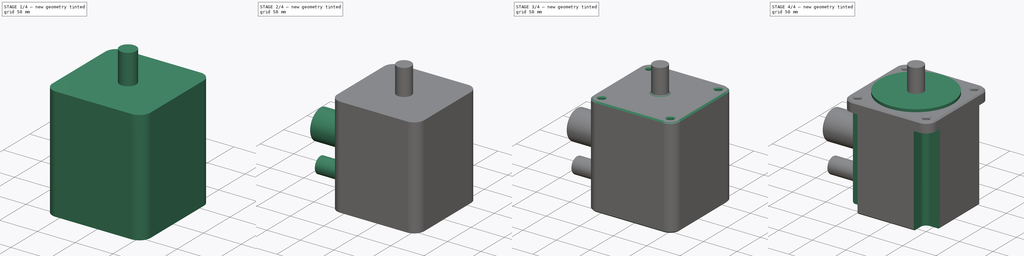
[diagram: build sequence overview — one tinted view per stage of 4, left to right]
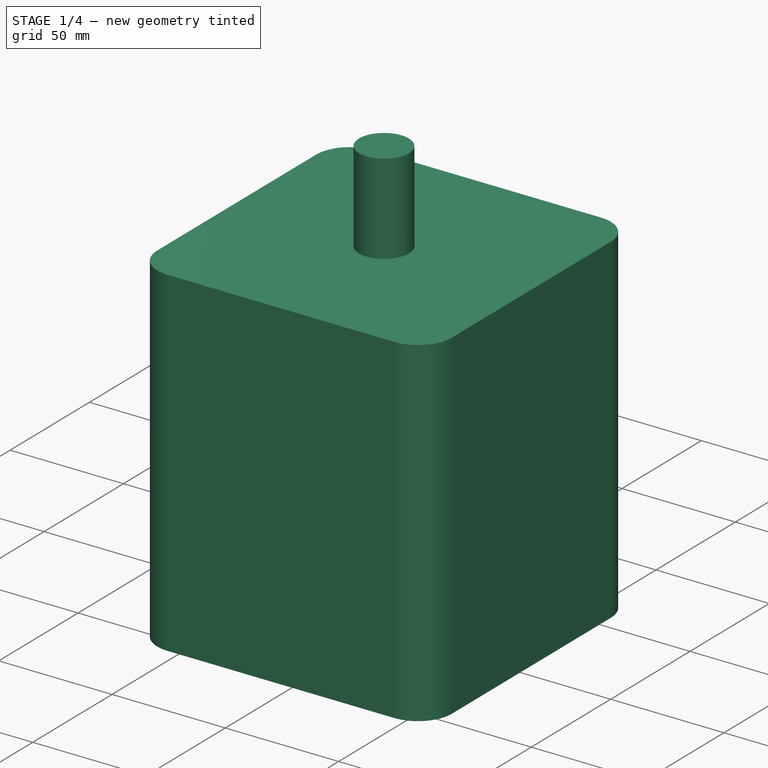
[diagram: stage 1 of 4 — iso view after this stage's code; geometry added in this stage tinted green]
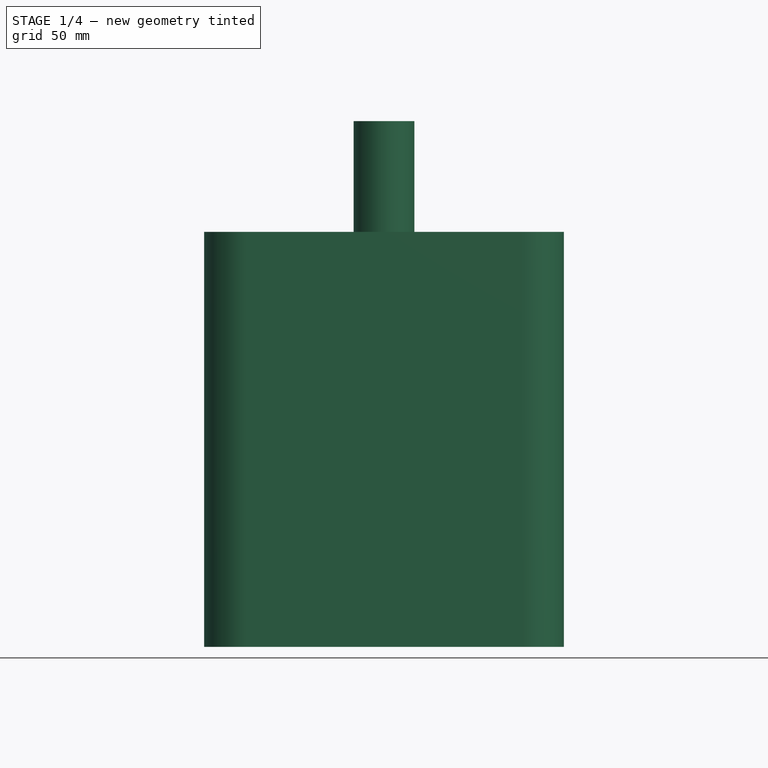
[diagram: stage 1 of 4 — front view after this stage's code; geometry added in this stage tinted green]
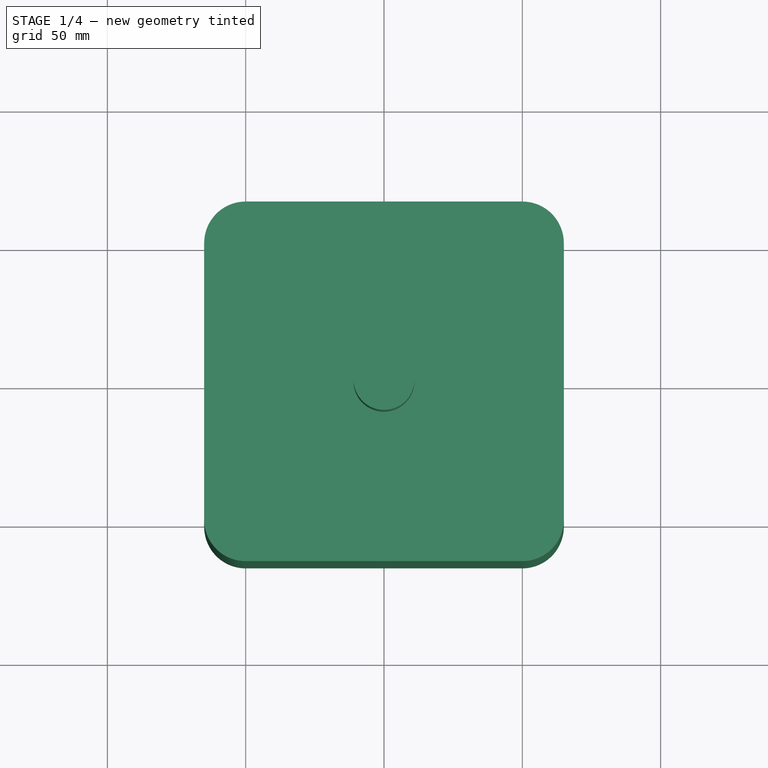
[diagram: stage 1 of 4 — top view after this stage's code; geometry added in this stage tinted green]
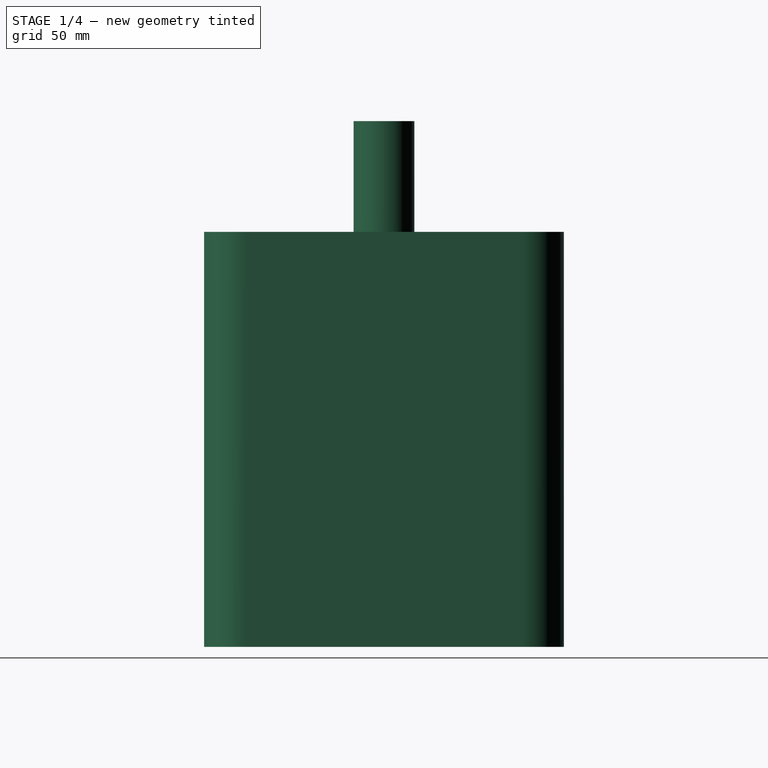
[diagram: stage 1 of 4 — right view after this stage's code; geometry added in this stage tinted green]
FCSTD DOCUMENT  (FreeCAD 0.21R33771 (Git))
Label: Motore-P60B13150HXS00M- SANYO
License: All rights reserved
LicenseURL: http://en.wikipedia.org/wiki/All_rights_reserved
objects: Sketcher::SketchObject×6, PartDesign::Pad×4, PartDesign::Fillet×2, PartDesign::Pocket×2, PartDesign::CoordinateSystem×1, PartDesign::Chamfer×1, PartDesign::Body×1, App::MeasureDistance×1
note: 26 computed .brp shape members not serialized (recipe doc carries the construction recipe); baked Part::Feature solids carry a one-line shape summary decoded from their .brp

FEATURE [Sketcher::SketchObject] Sketch
  FullyConstrained = true
  MapMode = 5
  Support = -> [XY_Plane]
  sketch-geometry (8):
    g0: LineSegment StartX=-50 StartY=65 StartZ=0 EndX=50 EndY=65 EndZ=0
    g1: LineSegment StartX=65 StartY=50 StartZ=0 EndX=65 EndY=-50 EndZ=0
    g2: LineSegment StartX=50 StartY=-65 StartZ=0 EndX=-50 EndY=-65 EndZ=0
    g3: LineSegment StartX=-65 StartY=-50 StartZ=0 EndX=-65 EndY=50 EndZ=0
    g4: ArcOfCircle CenterX=50 CenterY=50 CenterZ=0 NormalX=0 NormalY=0 NormalZ=1 AngleXU=0 Radius=15 StartAngle=0 EndAngle=1.5708
    g5: ArcOfCircle CenterX=-50 CenterY=50 CenterZ=0 NormalX=0 NormalY=0 NormalZ=1 AngleXU=0 Radius=15 StartAngle=1.5708 EndAngle=3.14159
    g6: ArcOfCircle CenterX=-50 CenterY=-50 CenterZ=0 NormalX=0 NormalY=0 NormalZ=1 AngleXU=0 Radius=15 StartAngle=3.14159 EndAngle=4.71239
    g7: ArcOfCircle CenterX=50 CenterY=-50 CenterZ=0 NormalX=0 NormalY=0 NormalZ=1 AngleXU=0 Radius=15 StartAngle=4.71239 EndAngle=6.28319
  constraints (19):
    c: Horizontal(g0)
    c: Vertical(g1)
    c: Tangent(g1,g4) = 1.5708
    c: Tangent(g0,g4) = 1.5708
    c: Tangent(g0,g5) = 1.5708
    c: Tangent(g3,g5) = 1.5708
    c: Tangent(g3,g6) = 1.5708
    c: Tangent(g2,g6) = 1.5708
    c: Tangent(g2,g7) = 1.5708
    c: Tangent(g1,g7) = 1.5708
    c: Equal(g5,g6)
    c: Equal(g6,g7)
    c: Equal(g7,g4)
    c: Equal(g0,g2)
    c: Radius(g4) = 15
    c: DistanceX(g2,g2) = 100
    c: DistanceY(g3,g3) = 100
    c: Symmetric(g6,g7,g-2)
    c: DistanceY(g7,g-1) = 50
FEATURE [PartDesign::Pad] Pad
  Direction = (0,0,1)
  Length = 150
  Length2 = 10
  Profile = -> Sketch
  ReferenceAxis = -> Sketch [N_Axis]
  Type = 0
FEATURE [Sketcher::SketchObject] Sketch001
  FullyConstrained = true
  MapMode = 5
  Placement = pos=(0,0,150) rot=(0,0,1;0rad)
  Support = -> [Pad]
  sketch-geometry (1):
    g0: Circle CenterX=0 CenterY=0 CenterZ=0 NormalX=0 NormalY=0 NormalZ=1 AngleXU=0 Radius=11
  constraints (2):
    c: Coincident(g0,g-1)
    c: Radius(g0) = 11
FEATURE [PartDesign::Pad] Pad001
  BaseFeature = -> Pad
  Direction = (0,0,1)
  Length = 40
  Length2 = 10
  Profile = -> Sketch001
  ReferenceAxis = -> Sketch001 [N_Axis]
  Type = 0
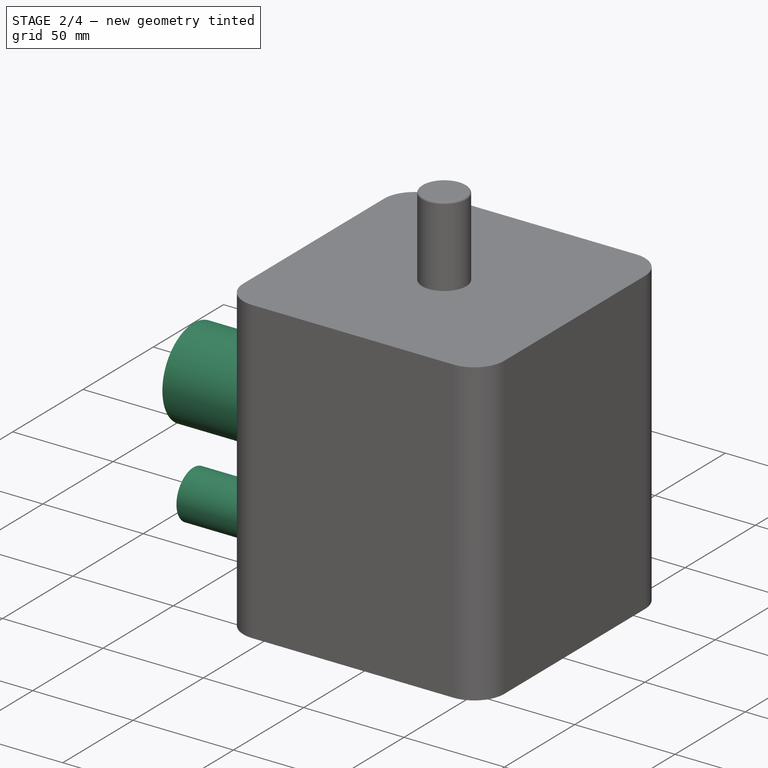
[diagram: stage 2 of 4 — iso view after this stage's code; geometry added in this stage tinted green]
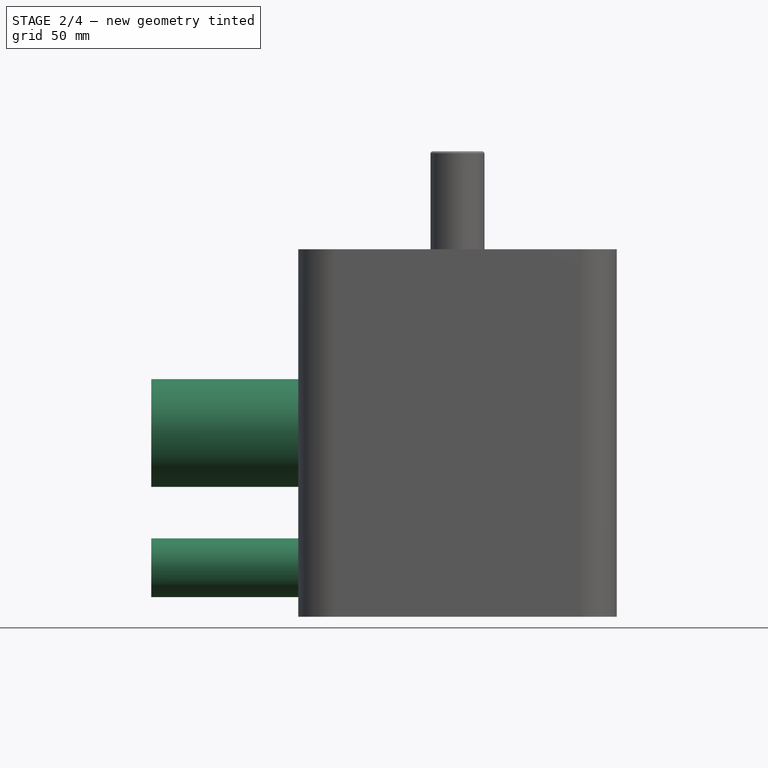
[diagram: stage 2 of 4 — front view after this stage's code; geometry added in this stage tinted green]
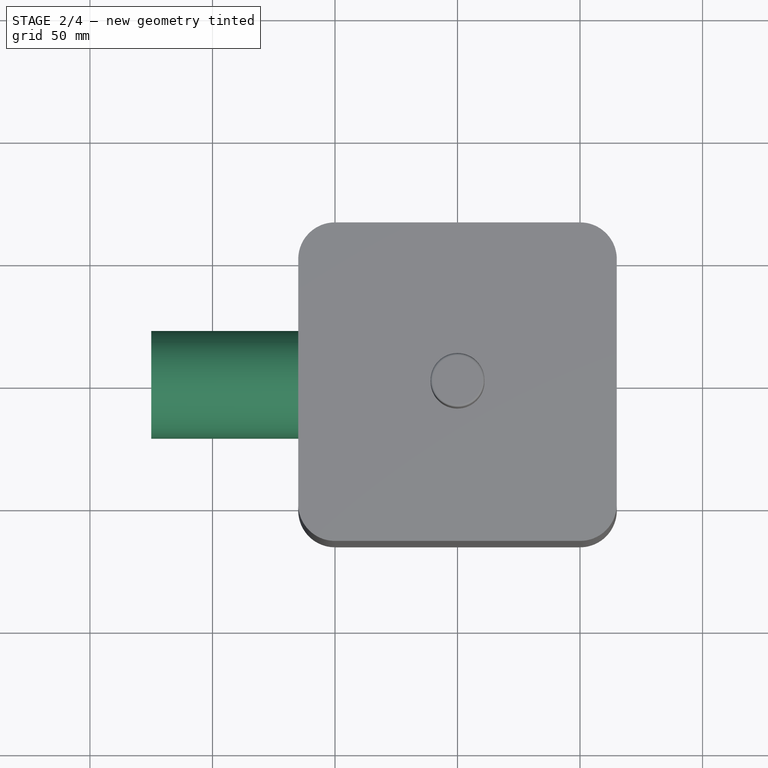
[diagram: stage 2 of 4 — top view after this stage's code; geometry added in this stage tinted green]
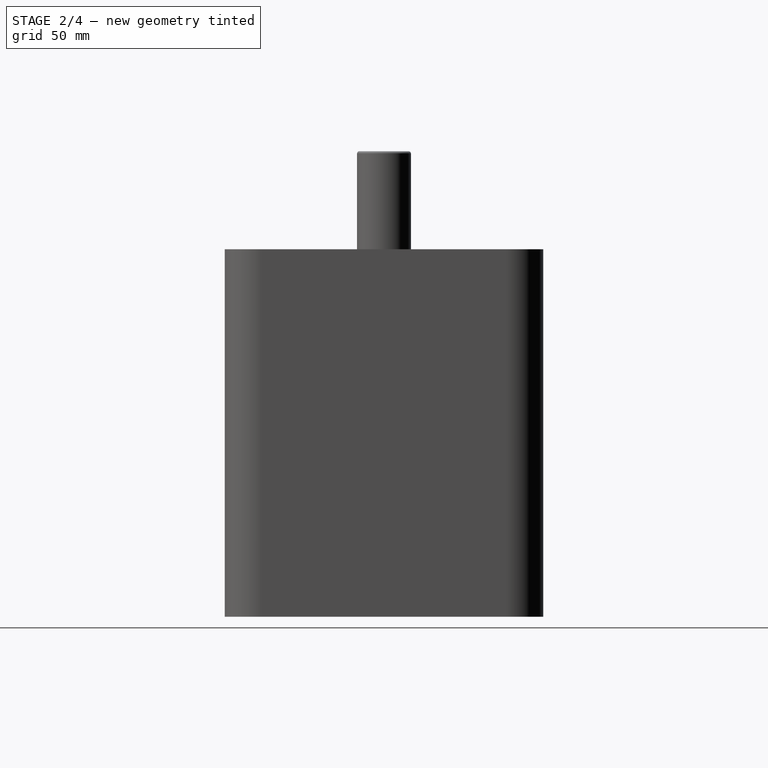
[diagram: stage 2 of 4 — right view after this stage's code; geometry added in this stage tinted green]
FEATURE [PartDesign::Fillet] Fillet
  Base = -> Pad001 [Edge27]
  BaseFeature = -> Pad001
  Radius = 1
  SupportTransform = false
  UseAllEdges = false
FEATURE [Sketcher::SketchObject] Sketch002
  FullyConstrained = true
  MapMode = 5
  Placement = pos=(-65,0,0) rot=(0.57735,-0.57735,-0.57735;2.0944rad)
  Support = -> [Fillet]
  sketch-geometry (2):
    g0: Circle CenterX=0 CenterY=75 CenterZ=0 NormalX=0 NormalY=0 NormalZ=1 AngleXU=0 Radius=22
    g1: Circle CenterX=0 CenterY=20 CenterZ=0 NormalX=0 NormalY=0 NormalZ=1 AngleXU=0 Radius=12
  constraints (6):
    c: PointOnObject(g0,g-2)
    c: Radius(g0) = 22
    c: DistanceY(g-1,g0) = 75
    c: PointOnObject(g1,g-2)
    c: Radius(g1) = 12
    c: DistanceY(g-1,g1) = 20
FEATURE [PartDesign::Pad] Pad002
  BaseFeature = -> Fillet
  Direction = (-1,0,0)
  Length = 60
  Length2 = 10
  Profile = -> Sketch002
  ReferenceAxis = -> Sketch002 [N_Axis]
  Type = 0
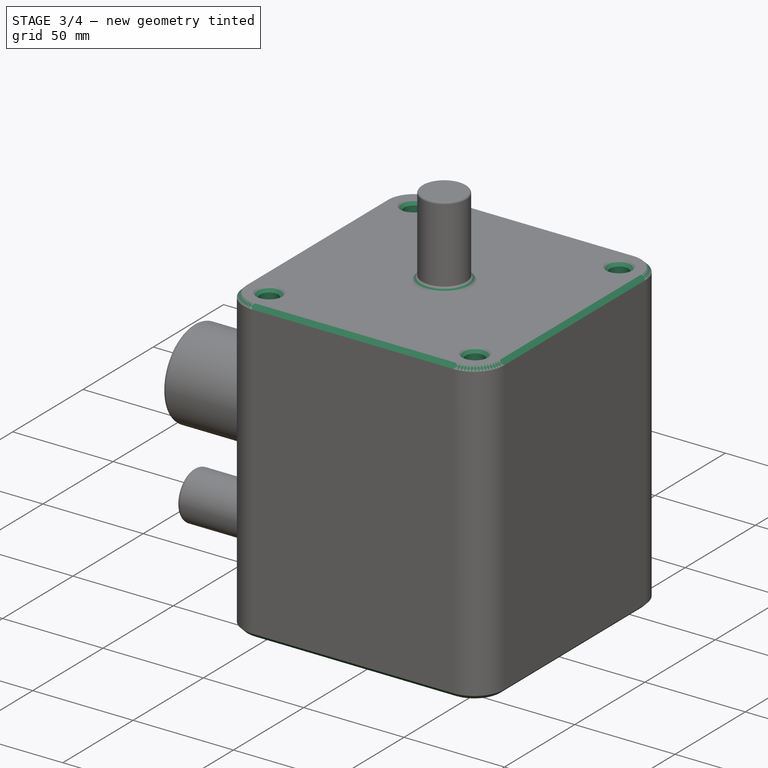
[diagram: stage 3 of 4 — iso view after this stage's code; geometry added in this stage tinted green]
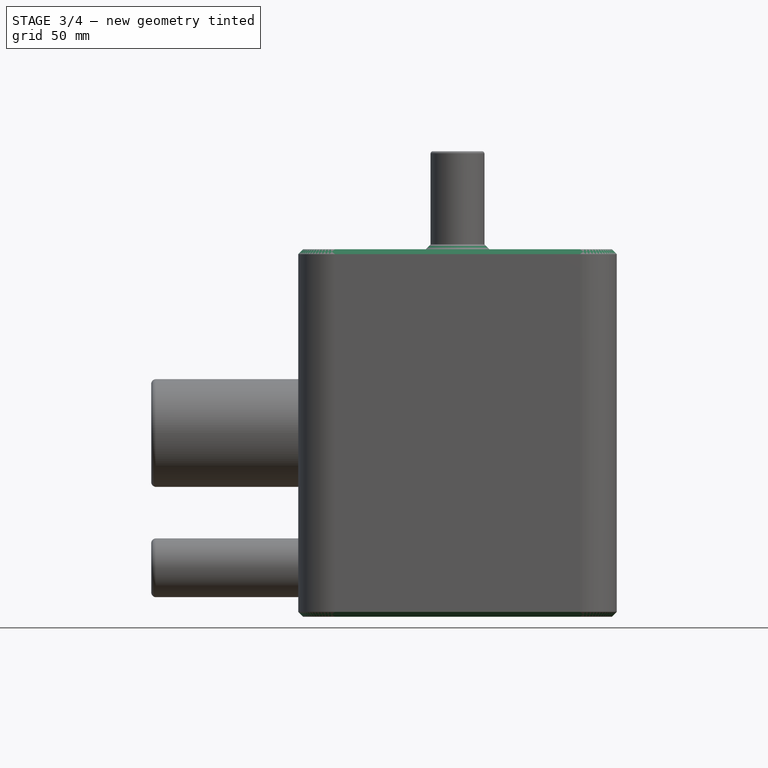
[diagram: stage 3 of 4 — front view after this stage's code; geometry added in this stage tinted green]
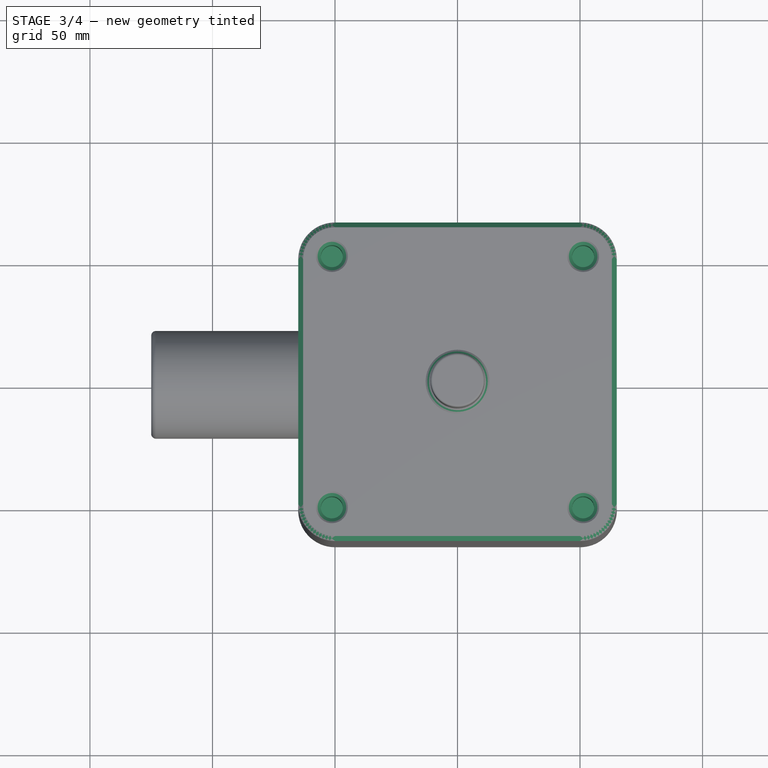
[diagram: stage 3 of 4 — top view after this stage's code; geometry added in this stage tinted green]
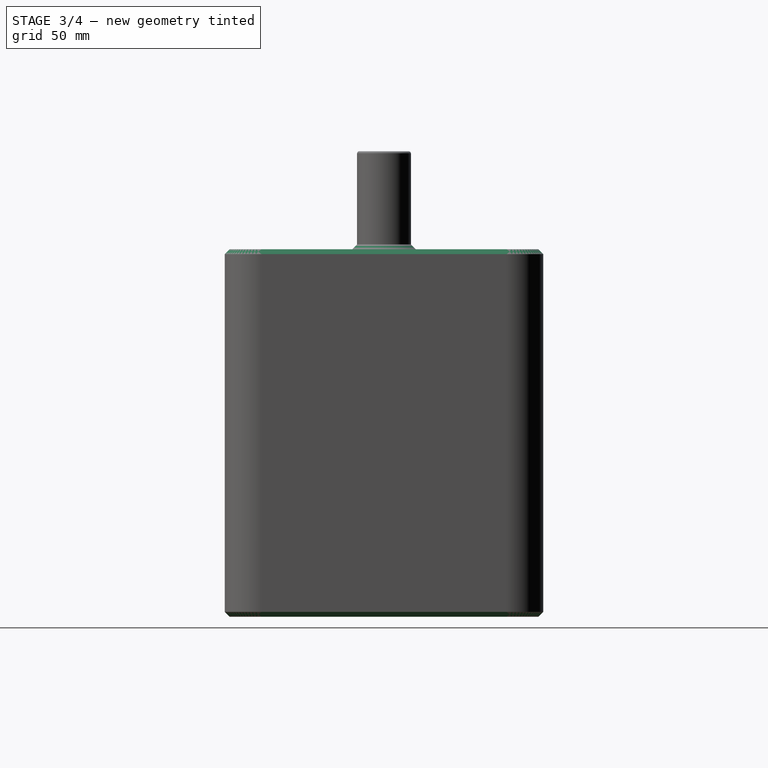
[diagram: stage 3 of 4 — right view after this stage's code; geometry added in this stage tinted green]
FEATURE [PartDesign::CoordinateSystem] LCS_Motore_sanyoP60  label="LCS_Motore sanyoP60"
  AttacherType = Attacher::AttachEngine3D
  Placement = pos=(0,0,0) rot=(1,0,0;1.5708rad)
FEATURE [Sketcher::SketchObject] Sketch003
  FullyConstrained = false
  MapMode = 5
  Placement = pos=(0,0,150) rot=(0,0,1;0rad)
  Support = -> [Pad002]
  sketch-geometry (9):
    g0: Circle CenterX=-51.2652 CenterY=51.2652 CenterZ=0 NormalX=0 NormalY=0 NormalZ=1 AngleXU=0 Radius=4.5
    g1: Circle CenterX=51.2652 CenterY=51.2652 CenterZ=0 NormalX=0 NormalY=0 NormalZ=1 AngleXU=0 Radius=4.5
    g2: Circle CenterX=51.2652 CenterY=-51.2652 CenterZ=0 NormalX=0 NormalY=0 NormalZ=1 AngleXU=0 Radius=4.5
    g3: Circle CenterX=-51.2652 CenterY=-51.2652 CenterZ=0 NormalX=0 NormalY=0 NormalZ=1 AngleXU=0 Radius=4.5
    g4: Circle CenterX=0 CenterY=0 CenterZ=0 NormalX=0 NormalY=0 NormalZ=1 AngleXU=0 Radius=72.5
    g5: LineSegment StartX=0 StartY=0 StartZ=0 EndX=83.64 EndY=83.64 EndZ=0
    g6: LineSegment StartX=0 StartY=0 StartZ=0 EndX=-77.2502 EndY=77.2502 EndZ=0
    g7: LineSegment StartX=0 StartY=0 StartZ=0 EndX=-76.8185 EndY=-76.8185 EndZ=0
    g8: LineSegment StartX=0 StartY=0 StartZ=0 EndX=82.668 EndY=-82.668 EndZ=0
  constraints (22):
    c: Radius(g0) = 4.5
    c: Equal(g0,g1)
    c: Equal(g1,g3)
    c: Equal(g3,g2)
    c: Coincident(g4,g-1)
    c: Radius(g4) = 72.5
    c: PointOnObject(g1,g4)
    c: PointOnObject(g0,g4)
    c: PointOnObject(g3,g4)
    c: PointOnObject(g2,g4)
    c: Coincident(g5,g4)
    c: Coincident(g6,g4)
    c: Coincident(g7,g4)
    c: Coincident(g8,g4)
    c: Angle(g-1,g5) = 0.785398
    c: Angle(g5,g6) = 1.5708
    c: Angle(g6,g7) = 1.5708
    c: Angle(g7,g8) = 1.5708
    c: PointOnObject(g1,g5)
    c: PointOnObject(g0,g6)
    c: PointOnObject(g3,g7)
    c: PointOnObject(g2,g8)
FEATURE [PartDesign::Pocket] Pocket
  BaseFeature = -> Pad002
  Direction = (0,0,-1)
  Length = 25
  Length2 = 5
  Profile = -> Sketch003
  ReferenceAxis = -> Sketch003 [N_Axis]
  Type = 0
FEATURE [PartDesign::Fillet] Fillet001
  Base = -> Pocket [Edge47,Edge45]
  BaseFeature = -> Pocket
  Radius = 2
  SupportTransform = false
  UseAllEdges = false
FEATURE [PartDesign::Chamfer] Chamfer
  Angle = 45
  Base = -> Fillet001 [Edge8,Edge20,Edge23,Edge25,Edge24,Edge13,Face7,Edge21,Edge22,Edge7,Edge19,Edge12,Edge14,Edge15,Edge16,Edge17,Edge18]
  BaseFeature = -> Fillet001
  ChamferType = 0
  FlipDirection = false
  Size = 2
  Size2 = 1
  SupportTransform = false
  UseAllEdges = false
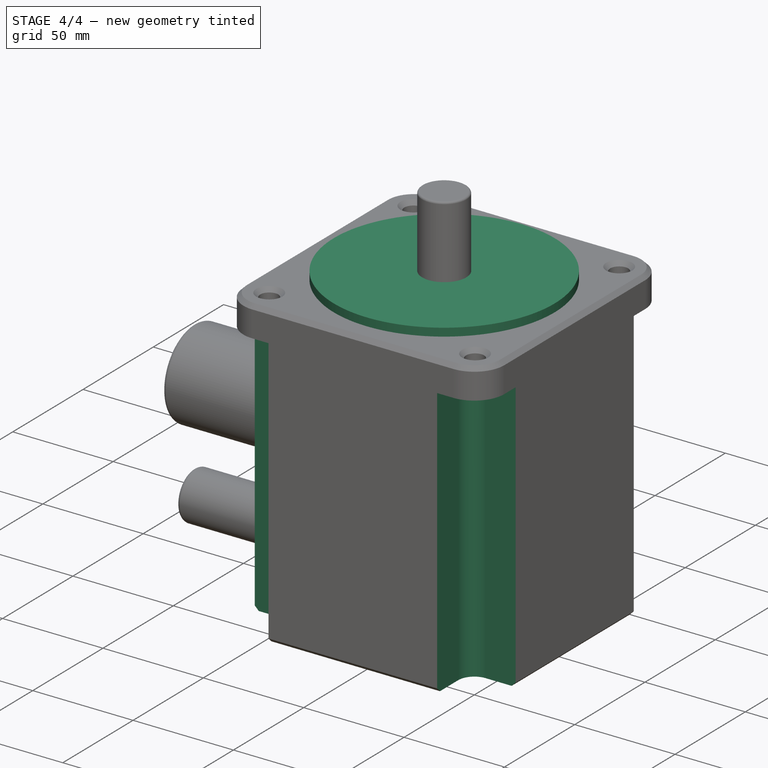
[diagram: stage 4 of 4 — iso view after this stage's code; geometry added in this stage tinted green]
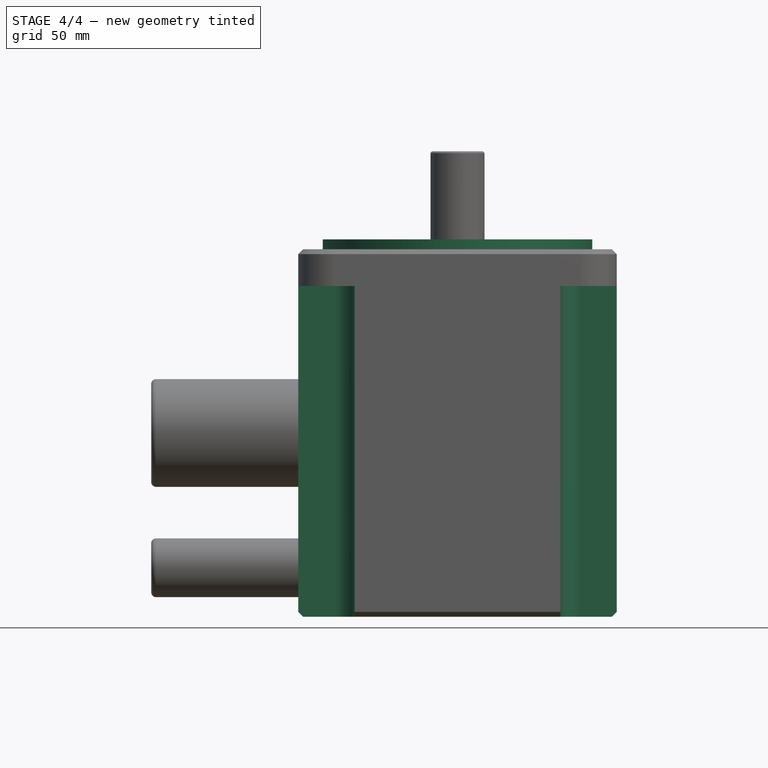
[diagram: stage 4 of 4 — front view after this stage's code; geometry added in this stage tinted green]
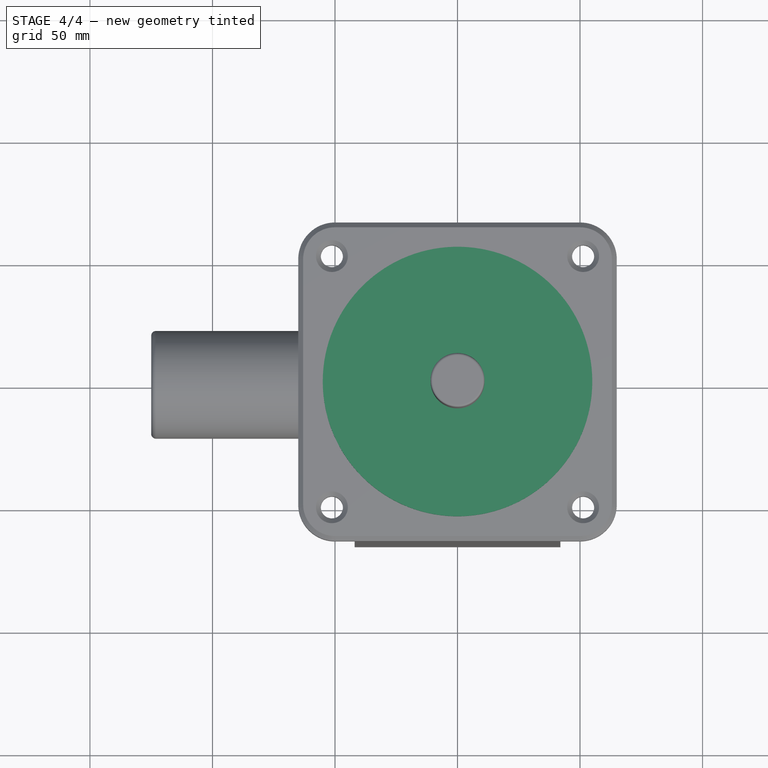
[diagram: stage 4 of 4 — top view after this stage's code; geometry added in this stage tinted green]
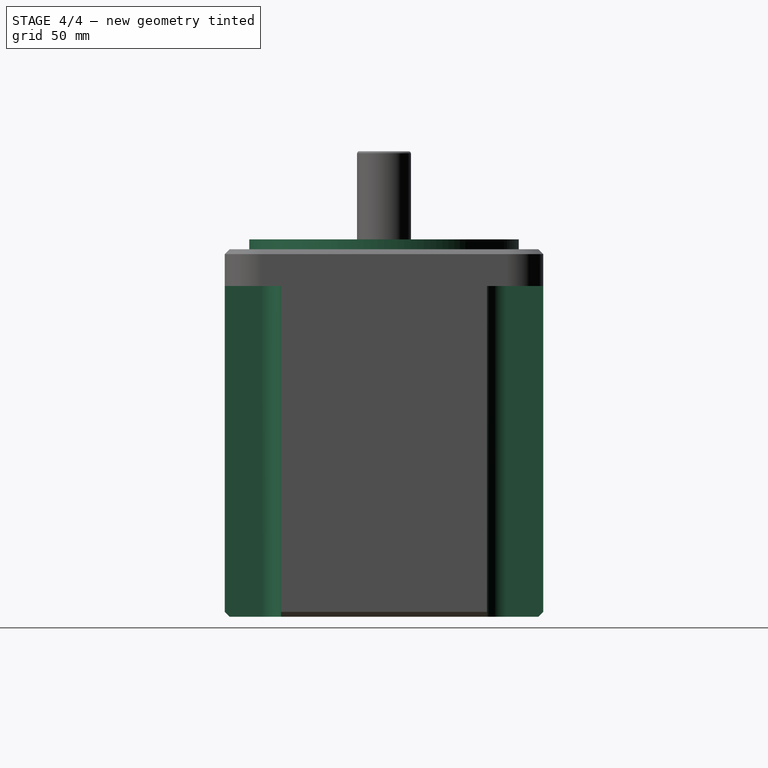
[diagram: stage 4 of 4 — right view after this stage's code; geometry added in this stage tinted green]
FEATURE [Sketcher::SketchObject] Sketch004
  FullyConstrained = true
  MapMode = 5
  Placement = pos=(0,0,150) rot=(0,0,1;0rad)
  Support = -> [Chamfer]
  sketch-geometry (1):
    g0: Circle CenterX=0 CenterY=0 CenterZ=0 NormalX=0 NormalY=0 NormalZ=1 AngleXU=0 Radius=55
  constraints (2):
    c: Coincident(g0,g-1)
    c: Radius(g0) = 55
FEATURE [PartDesign::Pad] Pad003
  BaseFeature = -> Chamfer
  Direction = (0,0,1)
  Length = 4
  Length2 = 10
  Profile = -> Sketch004
  ReferenceAxis = -> Sketch004 [N_Axis]
  Type = 0
FEATURE [Sketcher::SketchObject] Sketch005
  ExternalGeometry = -> [Pad003]
  FullyConstrained = false
  MapMode = 5
  Placement = pos=(0,0,0) rot=(1,0,0;3.14159rad)
  Support = -> [Pad003]
  sketch-geometry (24):
    g0: ArcOfCircle CenterX=-50 CenterY=-50 CenterZ=0 NormalX=0 NormalY=0 NormalZ=1 AngleXU=0 Radius=8 StartAngle=3e-16 EndAngle=1.5708
    g1: LineSegment StartX=-50 StartY=-42 StartZ=0 EndX=-65 EndY=-42 EndZ=0
    g2: LineSegment StartX=-42 StartY=-50 StartZ=0 EndX=-42 EndY=-65 EndZ=0
    g3: LineSegment StartX=-65 StartY=-50 StartZ=0 EndX=-65 EndY=-42 EndZ=0
    g4: LineSegment StartX=-50 StartY=-65 StartZ=0 EndX=-42 EndY=-65 EndZ=0
    g5: ArcOfCircle CenterX=-50 CenterY=-50 CenterZ=0 NormalX=0 NormalY=0 NormalZ=1 AngleXU=0 Radius=15 StartAngle=3.14159 EndAngle=4.71239
    g6: ArcOfCircle CenterX=50 CenterY=-50 CenterZ=0 NormalX=0 NormalY=0 NormalZ=1 AngleXU=0 Radius=8 StartAngle=1.5708 EndAngle=3.14159
    g7: LineSegment StartX=50 StartY=-42 StartZ=0 EndX=65 EndY=-42 EndZ=0
    g8: LineSegment StartX=42 StartY=-50 StartZ=0 EndX=42 EndY=-65 EndZ=0
    g9: LineSegment StartX=65 StartY=-50 StartZ=0 EndX=65 EndY=-42 EndZ=0
    g10: LineSegment StartX=50 StartY=-65 StartZ=0 EndX=42 EndY=-65 EndZ=0
    g11: ArcOfCircle CenterX=50 CenterY=-50 CenterZ=0 NormalX=0 NormalY=0 NormalZ=1 AngleXU=0 Radius=15 StartAngle=4.71239 EndAngle=6.28319
    g12: ArcOfCircle CenterX=-50 CenterY=50 CenterZ=0 NormalX=0 NormalY=0 NormalZ=1 AngleXU=0 Radius=8 StartAngle=4.71239 EndAngle=6.28319
    g13: LineSegment StartX=-50 StartY=42 StartZ=0 EndX=-65 EndY=42 EndZ=0
    g14: LineSegment StartX=-42 StartY=50 StartZ=0 EndX=-42 EndY=65 EndZ=0
    g15: LineSegment StartX=-65 StartY=50 StartZ=0 EndX=-65 EndY=42 EndZ=0
    g16: LineSegment StartX=-50 StartY=65 StartZ=0 EndX=-42 EndY=65 EndZ=0
    g17: ArcOfCircle CenterX=-50 CenterY=50 CenterZ=0 NormalX=0 NormalY=0 NormalZ=1 AngleXU=0 Radius=15 StartAngle=1.5708 EndAngle=3.14159
    g18: ArcOfCircle CenterX=50 CenterY=50 CenterZ=0 NormalX=0 NormalY=0 NormalZ=1 AngleXU=0 Radius=8 StartAngle=3.14159 EndAngle=4.71239
    g19: LineSegment StartX=50 StartY=42 StartZ=0 EndX=65 EndY=42 EndZ=0
    g20: LineSegment StartX=42 StartY=50 StartZ=0 EndX=42 EndY=65 EndZ=0
    g21: LineSegment StartX=65 StartY=50 StartZ=0 EndX=65 EndY=42 EndZ=0
    g22: LineSegment StartX=50 StartY=65 StartZ=0 EndX=42 EndY=65 EndZ=0
    g23: ArcOfCircle CenterX=50 CenterY=50 CenterZ=0 NormalX=0 NormalY=0 NormalZ=1 AngleXU=0 Radius=15 StartAngle=5e-16 EndAngle=1.5708
  constraints (55):
    c: Radius(g0) = 8
    c: Horizontal(g1)
    c: Vertical(g2)
    c: Tangent(g0,g1) = -1.5708
    c: Tangent(g0,g2) = 1.5708
    c: Coincident(g-3,g0)
    c: Vertical(g3)
    c: Horizontal(g4)
    c: Coincident(g4,g2)
    c: Coincident(g1,g3)
    c: DistanceX(g1,g1) = 15
    c: Equal(g1,g2)
    c: Equal(g4,g3)
    c: Coincident(g5,g0)
    c: Coincident(g5,g3)
    c: DistanceX(g4,g4) = 8
    c: Radius(g6) = 8
    c: Horizontal(g7)
    c: Vertical(g8)
    c: Tangent(g6,g7) = 1.5708
    c: Tangent(g6,g8) = -1.5708
    c: Vertical(g9)
    c: Horizontal(g10)
    c: Coincident(g10,g8)
    c: Coincident(g7,g9)
    c: Equal(g7,g8)
    c: Equal(g10,g9)
    c: Coincident(g11,g6)
    c: Coincident(g11,g9)
    c: Radius(g12) = 8
    c: Horizontal(g13)
    c: Vertical(g14)
    c: Tangent(g12,g13) = 1.5708
    c: Tangent(g12,g14) = -1.5708
    c: Vertical(g15)
    c: Horizontal(g16)
    c: Coincident(g16,g14)
    c: Coincident(g13,g15)
    c: Equal(g13,g14)
    c: Equal(g16,g15)
    c: Coincident(g17,g12)
    c: Coincident(g17,g15)
    c: Radius(g18) = 8
    c: Horizontal(g19)
    c: Vertical(g20)
    c: Tangent(g18,g19) = -1.5708
    c: Tangent(g18,g20) = 1.5708
    c: Vertical(g21)
    c: Horizontal(g22)
    c: Coincident(g22,g20)
    c: Coincident(g19,g21)
    c: Equal(g19,g20)
    c: Equal(g22,g21)
    c: Coincident(g23,g18)
    c: Coincident(g23,g21)
FEATURE [PartDesign::Pocket] Pocket001
  BaseFeature = -> Pad003
  Direction = (0,0,1)
  Length = 135
  Length2 = 5
  Profile = -> Sketch005
  ReferenceAxis = -> Sketch005 [N_Axis]
  Type = 0
FEATURE [PartDesign::Body] Body  label="Corpo"
  Group = -> [Sketch,Pad,Sketch001,Pad001,Fillet,Sketch002,Pad002,LCS_Motore_sanyoP60,Sketch003,Pocket,Fillet001,Chamfer,Sketch004,Pad003,Sketch005,Pocket001]
  Origin = -> Origin
  Placement = pos=(0,0,0) rot=(0,0,1;3.14159rad)
  Tip = -> Pocket001
FEATURE [App::MeasureDistance] Distance  label="Distance: 13,01 mm"
  Distance = 13.0069
  P1 = (-49.8189,-65,135)
  P2 = (-49.394,-65,148)
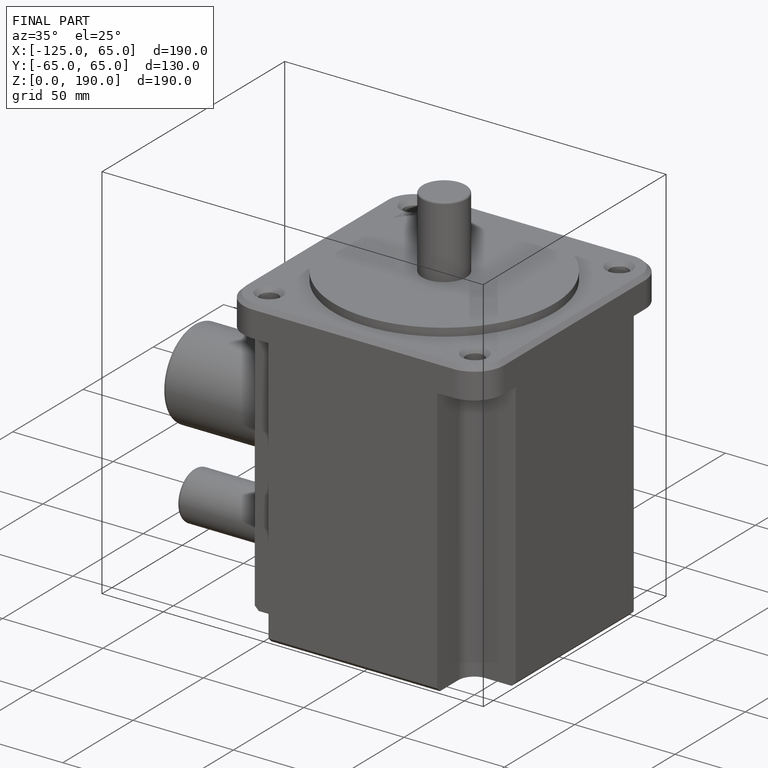
[diagram: finished part — iso view with bounding-box wireframe]
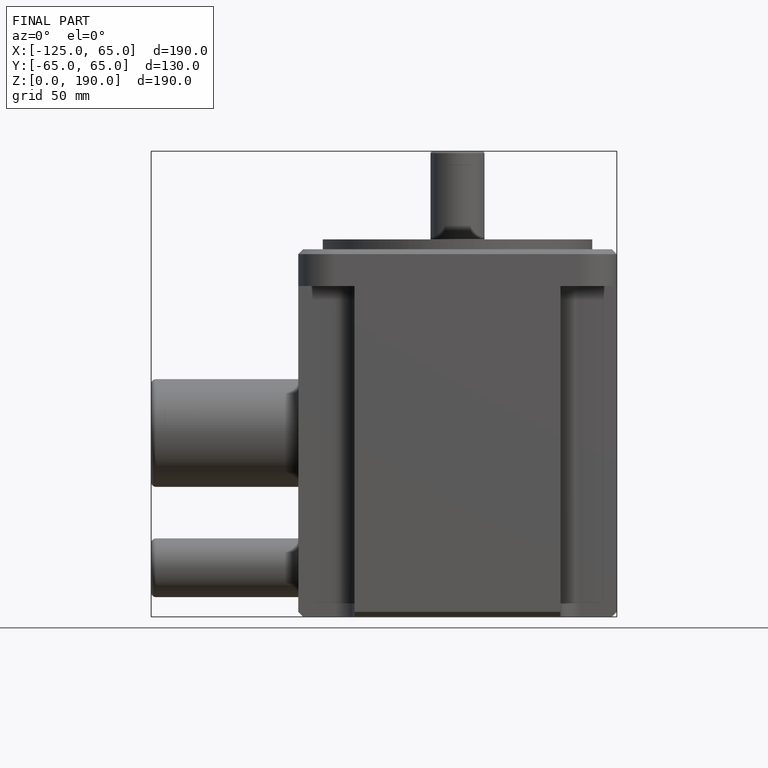
[diagram: finished part — front view with bounding-box wireframe]
